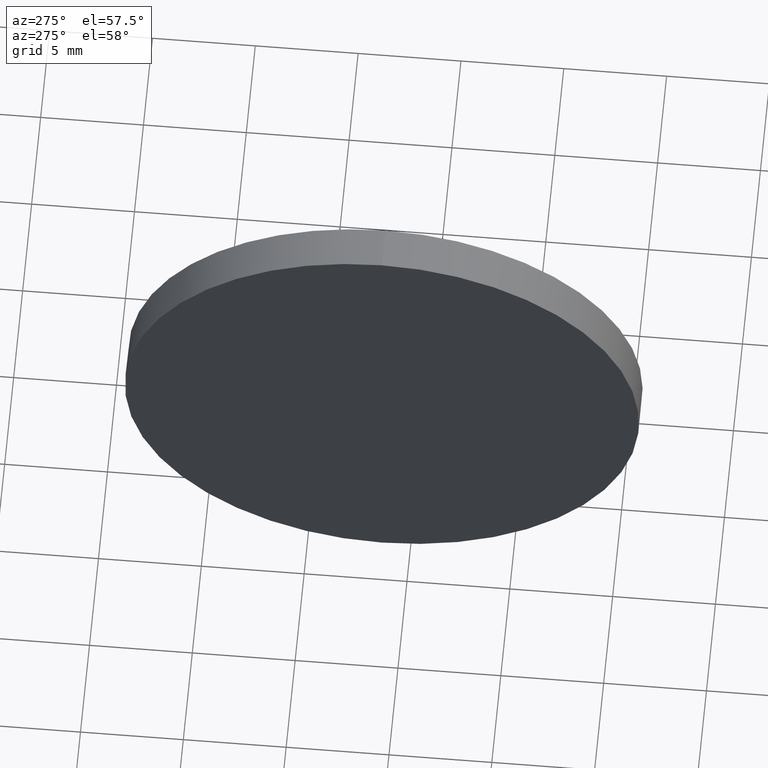
[diagram: clean part render]
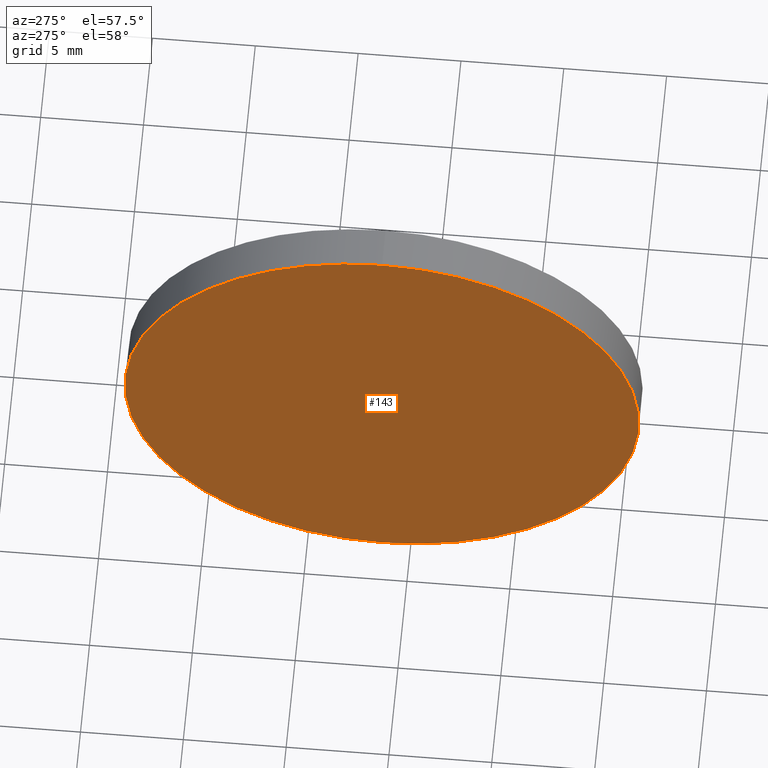
[diagram: same view with one face highlighted and labeled with its STEP entity id]
A machine part, auxiliary view. The second image highlights one B-rep face of the part: STEP entity #143.
In plain terms, the highlighted planar face has unit normal (1, 0, 0).
Its self-contained STEP definition (entity closure, byte-faithful):
#11 = DIRECTION ( 'NONE',  ( 0.0000000000000000000, 0.0000000000000000000, -1.000000000000000000 ) ) ;
#39 = DIRECTION ( 'NONE',  ( -1.000000000000000000, -0.0000000000000000000, -0.0000000000000000000 ) ) ;
#42 = CARTESIAN_POINT ( 'NONE',  ( 591.7743167103306000, 81.37318732975506900, -12.49999999999999600 ) ) ;
#50 = CARTESIAN_POINT ( 'NONE',  ( 591.7743167103306000, 81.37318732975506900, 12.49999999999999600 ) ) ;
#57 = ORIENTED_EDGE ( 'NONE', *, *, #180, .T. ) ;
#81 = DIRECTION ( 'NONE',  ( 1.000000000000000000, 0.0000000000000000000, 0.0000000000000000000 ) ) ;
#84 = VERTEX_POINT ( 'NONE', #50 ) ;
#101 = AXIS2_PLACEMENT_3D ( 'NONE', #186, #115, #183 ) ;
#102 = EDGE_CURVE ( 'NONE', #118, #84, #137, .T. ) ;
#103 = ORIENTED_EDGE ( 'NONE', *, *, #102, .T. ) ;
#109 = CIRCLE ( 'NONE', #101, 12.49999999999999600 ) ;
#110 = CARTESIAN_POINT ( 'NONE',  ( 591.7743167103306000, 81.37318732975506900, 0.0000000000000000000 ) ) ;
#115 = DIRECTION ( 'NONE',  ( -1.000000000000000000, -0.0000000000000000000, -0.0000000000000000000 ) ) ;
#118 = VERTEX_POINT ( 'NONE', #42 ) ;
#129 = AXIS2_PLACEMENT_3D ( 'NONE', #110, #39, #154 ) ;
#137 = CIRCLE ( 'NONE', #129, 12.49999999999999600 ) ;
#143 = ADVANCED_FACE ( 'NONE', ( #169 ), #182, .F. ) ;
#148 = AXIS2_PLACEMENT_3D ( 'NONE', #168, #81, #11 ) ;
#154 = DIRECTION ( 'NONE',  ( 0.0000000000000000000, 0.0000000000000000000, 1.000000000000000000 ) ) ;
#168 = CARTESIAN_POINT ( 'NONE',  ( 591.7743167103306000, 81.37318732975506900, 0.0000000000000000000 ) ) ;
#169 = FACE_OUTER_BOUND ( 'NONE', #171, .T. ) ;
#171 = EDGE_LOOP ( 'NONE', ( #57, #103 ) ) ;
#180 = EDGE_CURVE ( 'NONE', #84, #118, #109, .T. ) ;
#182 = PLANE ( 'NONE',  #148 ) ;
#183 = DIRECTION ( 'NONE',  ( 0.0000000000000000000, 0.0000000000000000000, 1.000000000000000000 ) ) ;
#186 = CARTESIAN_POINT ( 'NONE',  ( 591.7743167103306000, 81.37318732975506900, 0.0000000000000000000 ) ) ;